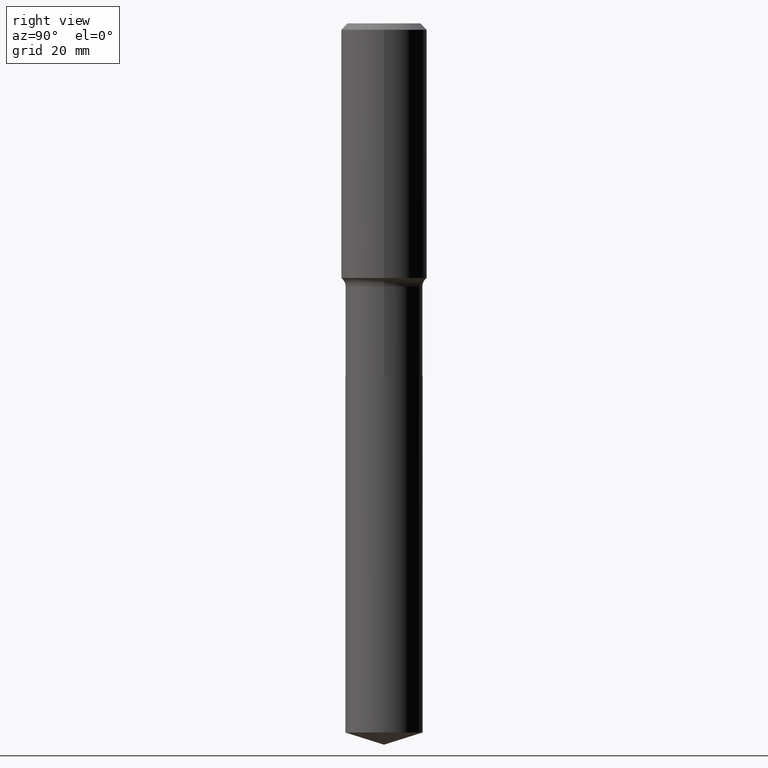
[diagram: clean part render]
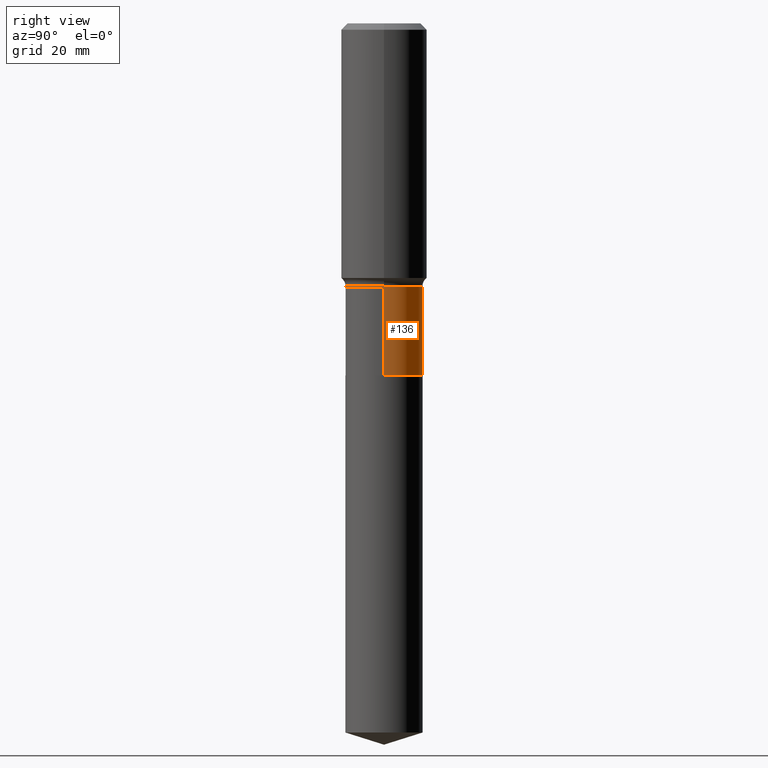
[diagram: same view with one face highlighted and labeled with its STEP entity id]
A machine part, right view. The second image highlights one B-rep face of the part: STEP entity #136.
In plain terms, the highlighted cylindrical surface (partial cylindrical patch) has radius 7.1437 mm, axis along (-0, 0, 1).
Its self-contained STEP definition (entity closure, byte-faithful):
#4 = CIRCLE ( 'NONE', #176, 0.2812500000000000000 ) ;
#17 = CARTESIAN_POINT ( 'NONE',  ( 0.000000000000000000, 0.000000000000000000, 0.000000000000000000 ) ) ;
#32 = VECTOR ( 'NONE', #216, 39.37007874015748143 ) ;
#34 = ORIENTED_EDGE ( 'NONE', *, *, #400, .F. ) ;
#86 = DIRECTION ( 'NONE',  ( 1.000000000000000000, -6.982962677686268288E-15, 4.876176775795935793E-29 ) ) ;
#122 = CARTESIAN_POINT ( 'NONE',  ( 0.2812499999999999445, -8.652239905787192831E-15, -1.915600000000000191 ) ) ;
#123 = VERTEX_POINT ( 'NONE', #154 ) ;
#126 = VERTEX_POINT ( 'NONE', #122 ) ;
#136 = ADVANCED_FACE ( 'NONE', ( #309 ), #272, .T. ) ;
#137 = DIRECTION ( 'NONE',  ( 1.000000000000000000, -6.982962677686268288E-15, 0.000000000000000000 ) ) ;
#143 = CIRCLE ( 'NONE', #390, 0.2812499999999999445 ) ;
#154 = CARTESIAN_POINT ( 'NONE',  ( -0.2812499999999999445, -5.818326977076751840E-15, -1.915600000000000191 ) ) ;
#175 = LINE ( 'NONE', #454, #32 ) ;
#176 = AXIS2_PLACEMENT_3D ( 'NONE', #223, #227, #388 ) ;
#199 = VERTEX_POINT ( 'NONE', #346 ) ;
#204 = VERTEX_POINT ( 'NONE', #305 ) ;
#215 = LINE ( 'NONE', #250, #269 ) ;
#216 = DIRECTION ( 'NONE',  ( -2.445468806185136877E-29, 3.491481338843145188E-15, 1.000000000000000000 ) ) ;
#223 = CARTESIAN_POINT ( 'NONE',  ( 6.265291081446318607E-29, -8.945175190116137696E-15, -2.561999999999999389 ) ) ;
#227 = DIRECTION ( 'NONE',  ( -2.445468806185136597E-29, 3.491481338843145583E-15, 1.000000000000000000 ) ) ;
#234 = EDGE_CURVE ( 'NONE', #199, #204, #4, .T. ) ;
#250 = CARTESIAN_POINT ( 'NONE',  ( 0.2812499999999999445, -1.963958253099262512E-15, 1.371424718192606732E-29 ) ) ;
#253 = ORIENTED_EDGE ( 'NONE', *, *, #448, .T. ) ;
#269 = VECTOR ( 'NONE', #456, 39.37007874015748143 ) ;
#272 = CYLINDRICAL_SURFACE ( 'NONE', #387, 0.2812499999999999445 ) ;
#305 = CARTESIAN_POINT ( 'NONE',  ( -0.2812500000000000555, -5.818326977076751051E-15, -2.561999999999999389 ) ) ;
#309 = FACE_OUTER_BOUND ( 'NONE', #480, .T. ) ;
#314 = DIRECTION ( 'NONE',  ( -2.445468806185136597E-29, 3.491481338843145583E-15, 1.000000000000000000 ) ) ;
#346 = CARTESIAN_POINT ( 'NONE',  ( 0.2812500000000000000, -1.090913344321540100E-14, -2.561999999999999389 ) ) ;
#355 = ORIENTED_EDGE ( 'NONE', *, *, #461, .F. ) ;
#387 = AXIS2_PLACEMENT_3D ( 'NONE', #17, #314, #86 ) ;
#388 = DIRECTION ( 'NONE',  ( 1.000000000000000000, -6.982962677686269866E-15, 0.000000000000000000 ) ) ;
#390 = AXIS2_PLACEMENT_3D ( 'NONE', #488, #486, #137 ) ;
#400 = EDGE_CURVE ( 'NONE', #126, #123, #143, .T. ) ;
#448 = EDGE_CURVE ( 'NONE', #204, #123, #175, .T. ) ;
#454 = CARTESIAN_POINT ( 'NONE',  ( -0.2812499999999999445, 1.998401444325281378E-15, -1.383450494134191988E-29 ) ) ;
#456 = DIRECTION ( 'NONE',  ( -2.445468806185136877E-29, 3.491481338843145188E-15, 1.000000000000000000 ) ) ;
#460 = ORIENTED_EDGE ( 'NONE', *, *, #234, .T. ) ;
#461 = EDGE_CURVE ( 'NONE', #199, #126, #215, .T. ) ;
#480 = EDGE_LOOP ( 'NONE', ( #460, #253, #34, #355 ) ) ;
#486 = DIRECTION ( 'NONE',  ( -2.445468806185136597E-29, 3.491481338843145583E-15, 1.000000000000000000 ) ) ;
#488 = CARTESIAN_POINT ( 'NONE',  ( 4.684540045128248326E-29, -6.688281652687930319E-15, -1.915600000000000191 ) ) ;